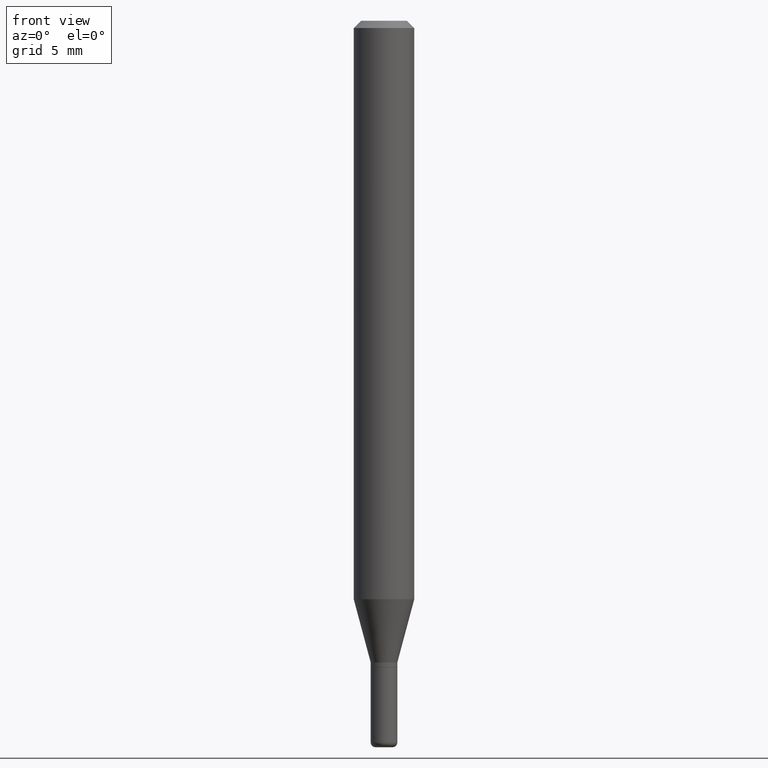
[diagram: clean part render]
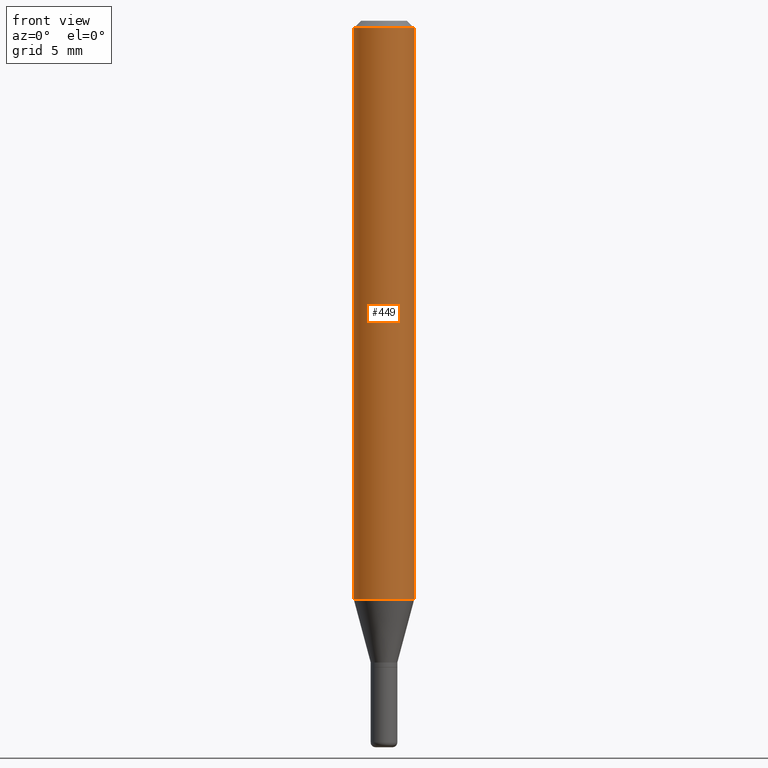
[diagram: same view with one face highlighted and labeled with its STEP entity id]
A machine part, front view. The second image highlights one B-rep face of the part: STEP entity #449.
In plain terms, the highlighted cylindrical surface (edge-blend (fillet) strip) has radius 1.5875 mm, axis along (-0, 0, 1).
Its self-contained STEP definition (entity closure, byte-faithful):
#15 = CARTESIAN_POINT ( 'NONE',  ( 0.06250000000000000000, -4.606584440064116240E-15, -1.194378221735089340 ) ) ;
#16 = CIRCLE ( 'NONE', #269, 0.06250000000000000000 ) ;
#22 = DIRECTION ( 'NONE',  ( -2.445468806185136597E-29, 3.491481338843145583E-15, 1.000000000000000000 ) ) ;
#25 = VERTEX_POINT ( 'NONE', #55 ) ;
#41 = CARTESIAN_POINT ( 'NONE',  ( -0.06250000000000000000, 4.440892098500626162E-16, -3.074334431409316114E-30 ) ) ;
#55 = CARTESIAN_POINT ( 'NONE',  ( -0.06250000000000000000, -3.726060062858662743E-15, -1.194378221735089340 ) ) ;
#57 = CIRCLE ( 'NONE', #367, 0.06250000000000000000 ) ;
#68 = DIRECTION ( 'NONE',  ( -2.445468806185136597E-29, 3.491481338843145583E-15, 1.000000000000000000 ) ) ;
#77 = EDGE_CURVE ( 'NONE', #453, #418, #57, .T. ) ;
#100 = CYLINDRICAL_SURFACE ( 'NONE', #158, 0.06250000000000000000 ) ;
#106 = VECTOR ( 'NONE', #366, 39.37007874015748143 ) ;
#111 = DIRECTION ( 'NONE',  ( 1.000000000000000000, -6.982962677686270655E-15, 0.000000000000000000 ) ) ;
#117 = EDGE_CURVE ( 'NONE', #25, #499, #16, .T. ) ;
#134 = DIRECTION ( 'NONE',  ( 1.000000000000000000, -6.982962677686266711E-15, 4.876176775795935793E-29 ) ) ;
#158 = AXIS2_PLACEMENT_3D ( 'NONE', #171, #22, #134 ) ;
#171 = CARTESIAN_POINT ( 'NONE',  ( 0.000000000000000000, 0.000000000000000000, 0.000000000000000000 ) ) ;
#178 = DIRECTION ( 'NONE',  ( -2.445468806185136597E-29, 3.491481338843145583E-15, 1.000000000000000000 ) ) ;
#212 = EDGE_CURVE ( 'NONE', #499, #418, #383, .T. ) ;
#222 = DIRECTION ( 'NONE',  ( -2.445468806185136877E-29, 3.491481338843145188E-15, 1.000000000000000000 ) ) ;
#238 = LINE ( 'NONE', #41, #270 ) ;
#245 = ORIENTED_EDGE ( 'NONE', *, *, #212, .T. ) ;
#247 = EDGE_LOOP ( 'NONE', ( #265, #504, #245, #347 ) ) ;
#265 = ORIENTED_EDGE ( 'NONE', *, *, #398, .F. ) ;
#269 = AXIS2_PLACEMENT_3D ( 'NONE', #281, #68, #111 ) ;
#270 = VECTOR ( 'NONE', #222, 39.37007874015748143 ) ;
#281 = CARTESIAN_POINT ( 'NONE',  ( 2.920814684040035017E-29, -4.170149272708725360E-15, -1.194378221735089340 ) ) ;
#306 = DIRECTION ( 'NONE',  ( 1.000000000000000000, -6.982962677686266711E-15, 0.000000000000000000 ) ) ;
#336 = CARTESIAN_POINT ( 'NONE',  ( 0.06250000000000000000, -4.888073874380378612E-16, -0.01499999999999970281 ) ) ;
#342 = FACE_OUTER_BOUND ( 'NONE', #247, .T. ) ;
#347 = ORIENTED_EDGE ( 'NONE', *, *, #77, .F. ) ;
#366 = DIRECTION ( 'NONE',  ( -2.445468806185136877E-29, 3.491481338843145188E-15, 1.000000000000000000 ) ) ;
#367 = AXIS2_PLACEMENT_3D ( 'NONE', #378, #178, #306 ) ;
#378 = CARTESIAN_POINT ( 'NONE',  ( 3.668203209277632395E-31, -5.237222008264614861E-17, -0.01499999999999970281 ) ) ;
#383 = LINE ( 'NONE', #445, #106 ) ;
#398 = EDGE_CURVE ( 'NONE', #25, #453, #238, .T. ) ;
#418 = VERTEX_POINT ( 'NONE', #336 ) ;
#445 = CARTESIAN_POINT ( 'NONE',  ( 0.06250000000000000000, -4.364351673553916694E-16, 3.047610484872459871E-30 ) ) ;
#449 = ADVANCED_FACE ( 'NONE', ( #342 ), #100, .T. ) ;
#453 = VERTEX_POINT ( 'NONE', #498 ) ;
#498 = CARTESIAN_POINT ( 'NONE',  ( -0.06250000000000000000, -1.667171536545623209E-15, -0.01499999999999970281 ) ) ;
#499 = VERTEX_POINT ( 'NONE', #15 ) ;
#504 = ORIENTED_EDGE ( 'NONE', *, *, #117, .T. ) ;